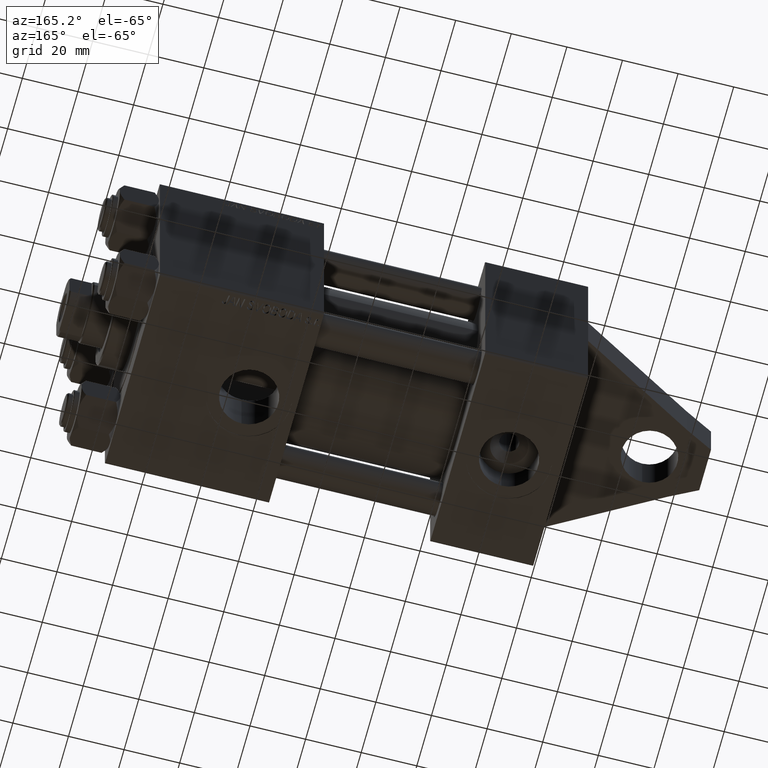
[diagram: clean part render]
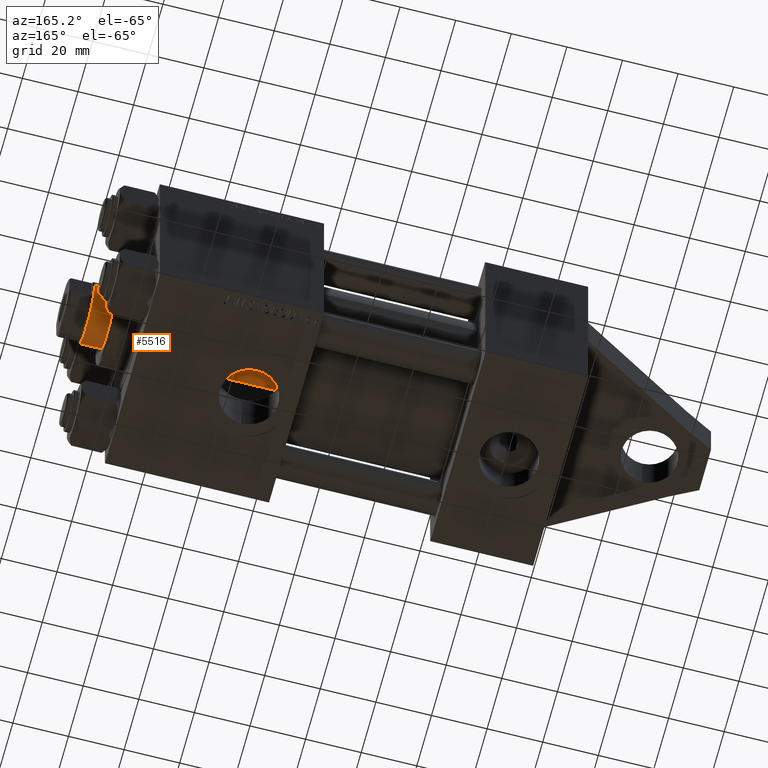
[diagram: same view with one face highlighted and labeled with its STEP entity id]
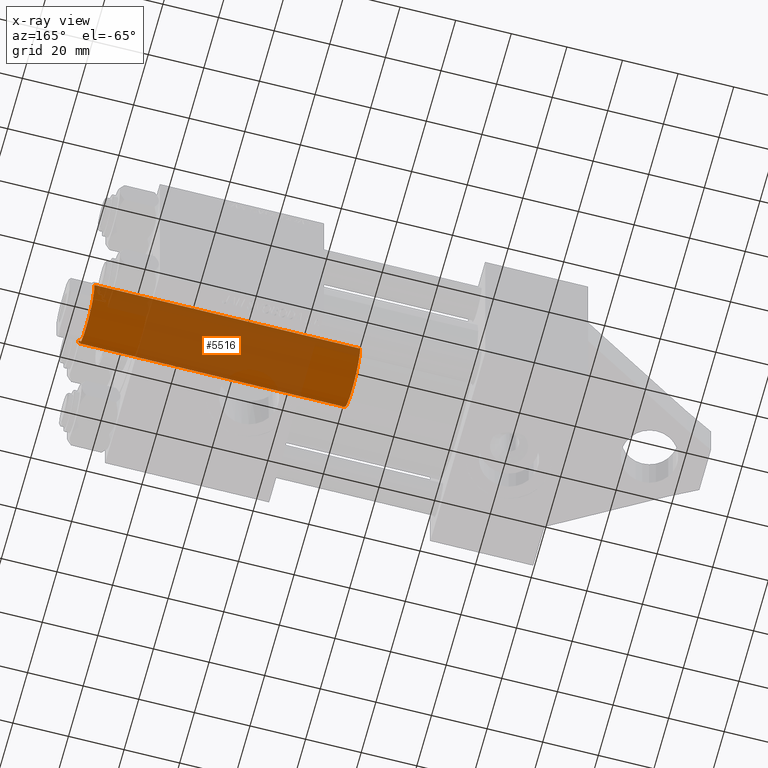
[diagram: x-ray of the same camera — body ghosted, the highlighted face saturated]
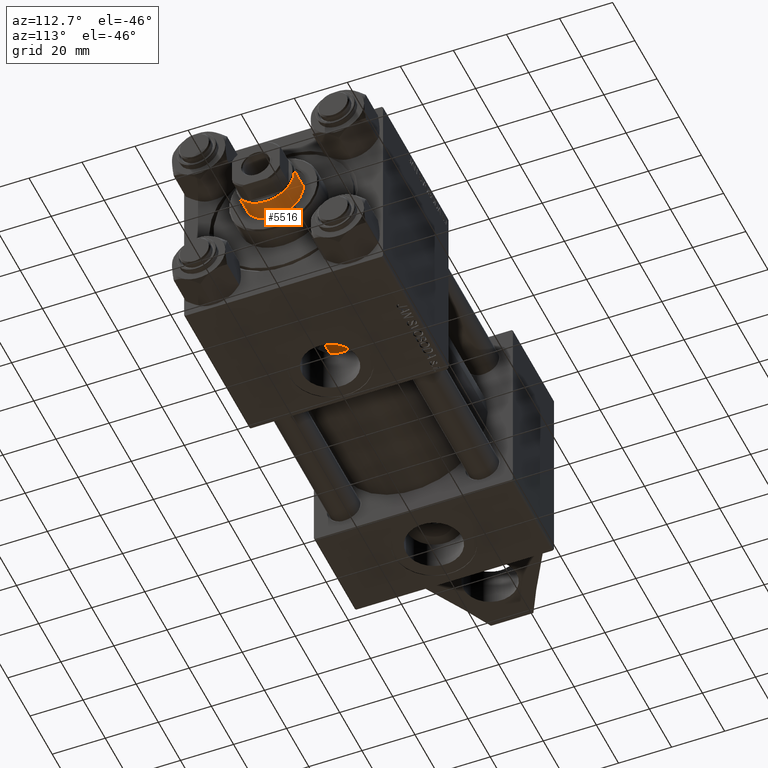
[diagram: same view with one face highlighted and labeled with its STEP entity id]
A machine part, auxiliary view. The second image highlights one B-rep face of the part: STEP entity #5516.
The next image is the same camera in x-ray: the body ghosted, the highlighted face saturated — about 66% of this face is hidden behind the body in this view.
A second angle (auxiliary view) of the same face is appended — the face is thin or edge-on in the first view.
In plain terms, the highlighted cylindrical surface (edge-blend (fillet) strip) has radius 11 mm, axis along (-1, -0, 0).
Its self-contained STEP definition (entity closure, byte-faithful):
#2093 = LINE ( 'NONE', #12337, #18089 ) ;
#2452 = EDGE_LOOP ( 'NONE', ( #25348, #31256, #19307, #16866 ) ) ;
#2956 = VERTEX_POINT ( 'NONE', #3973 ) ;
#3168 = DIRECTION ( 'NONE',  ( 0.000000000000000000, 0.000000000000000000, 1.000000000000000000 ) ) ;
#3973 = CARTESIAN_POINT ( 'NONE',  ( -11.00000000000000000, 0.000000000000000000, 38.00000000000000000 ) ) ;
#5516 = ADVANCED_FACE ( 'NONE', ( #10250 ), #38178, .T. ) ;
#6678 = DIRECTION ( 'NONE',  ( -0.000000000000000000, -0.000000000000000000, -1.000000000000000000 ) ) ;
#10250 = FACE_OUTER_BOUND ( 'NONE', #2452, .T. ) ;
#11415 = EDGE_CURVE ( 'NONE', #26224, #2956, #44442, .T. ) ;
#12337 = CARTESIAN_POINT ( 'NONE',  ( 11.00000000000000000, 1.347111479062088405E-15, 134.0000000000000000 ) ) ;
#14419 = DIRECTION ( 'NONE',  ( -0.000000000000000000, -0.000000000000000000, -1.000000000000000000 ) ) ;
#15315 = AXIS2_PLACEMENT_3D ( 'NONE', #21997, #32707, #28989 ) ;
#16866 = ORIENTED_EDGE ( 'NONE', *, *, #29480, .F. ) ;
#18089 = VECTOR ( 'NONE', #20250, 1000.000000000000000 ) ;
#19150 = AXIS2_PLACEMENT_3D ( 'NONE', #28405, #14419, #35373 ) ;
#19307 = ORIENTED_EDGE ( 'NONE', *, *, #11415, .T. ) ;
#20250 = DIRECTION ( 'NONE',  ( -0.000000000000000000, -0.000000000000000000, -1.000000000000000000 ) ) ;
#21997 = CARTESIAN_POINT ( 'NONE',  ( 0.000000000000000000, 0.000000000000000000, 133.5000000000000000 ) ) ;
#22342 = VERTEX_POINT ( 'NONE', #25356 ) ;
#22638 = VECTOR ( 'NONE', #6678, 1000.000000000000000 ) ;
#25348 = ORIENTED_EDGE ( 'NONE', *, *, #38128, .T. ) ;
#25356 = CARTESIAN_POINT ( 'NONE',  ( 11.00000000000000000, 1.347111479062088405E-15, 133.5000000000000000 ) ) ;
#26017 = EDGE_CURVE ( 'NONE', #22342, #26224, #2093, .T. ) ;
#26224 = VERTEX_POINT ( 'NONE', #43362 ) ;
#28405 = CARTESIAN_POINT ( 'NONE',  ( 0.000000000000000000, 0.000000000000000000, 134.0000000000000000 ) ) ;
#28989 = DIRECTION ( 'NONE',  ( 1.000000000000000000, 0.000000000000000000, 0.000000000000000000 ) ) ;
#29480 = EDGE_CURVE ( 'NONE', #31524, #2956, #31806, .T. ) ;
#31256 = ORIENTED_EDGE ( 'NONE', *, *, #26017, .T. ) ;
#31524 = VERTEX_POINT ( 'NONE', #35256 ) ;
#31806 = LINE ( 'NONE', #45992, #22638 ) ;
#32707 = DIRECTION ( 'NONE',  ( 0.000000000000000000, 0.000000000000000000, -1.000000000000000000 ) ) ;
#34063 = AXIS2_PLACEMENT_3D ( 'NONE', #35280, #3168, #35752 ) ;
#35256 = CARTESIAN_POINT ( 'NONE',  ( -11.00000000000000000, 0.000000000000000000, 133.5000000000000000 ) ) ;
#35280 = CARTESIAN_POINT ( 'NONE',  ( 0.000000000000000000, 0.000000000000000000, 38.00000000000000000 ) ) ;
#35373 = DIRECTION ( 'NONE',  ( -1.000000000000000000, 0.000000000000000000, 0.000000000000000000 ) ) ;
#35377 = CIRCLE ( 'NONE', #15315, 11.00000000000000000 ) ;
#35752 = DIRECTION ( 'NONE',  ( 1.000000000000000000, 0.000000000000000000, 0.000000000000000000 ) ) ;
#38128 = EDGE_CURVE ( 'NONE', #31524, #22342, #35377, .T. ) ;
#38178 = CYLINDRICAL_SURFACE ( 'NONE', #19150, 11.00000000000000000 ) ;
#43362 = CARTESIAN_POINT ( 'NONE',  ( 11.00000000000000000, 1.347111479062088405E-15, 38.00000000000000000 ) ) ;
#44442 = CIRCLE ( 'NONE', #34063, 11.00000000000000000 ) ;
#45992 = CARTESIAN_POINT ( 'NONE',  ( -11.00000000000000000, 0.000000000000000000, 134.0000000000000000 ) ) ;